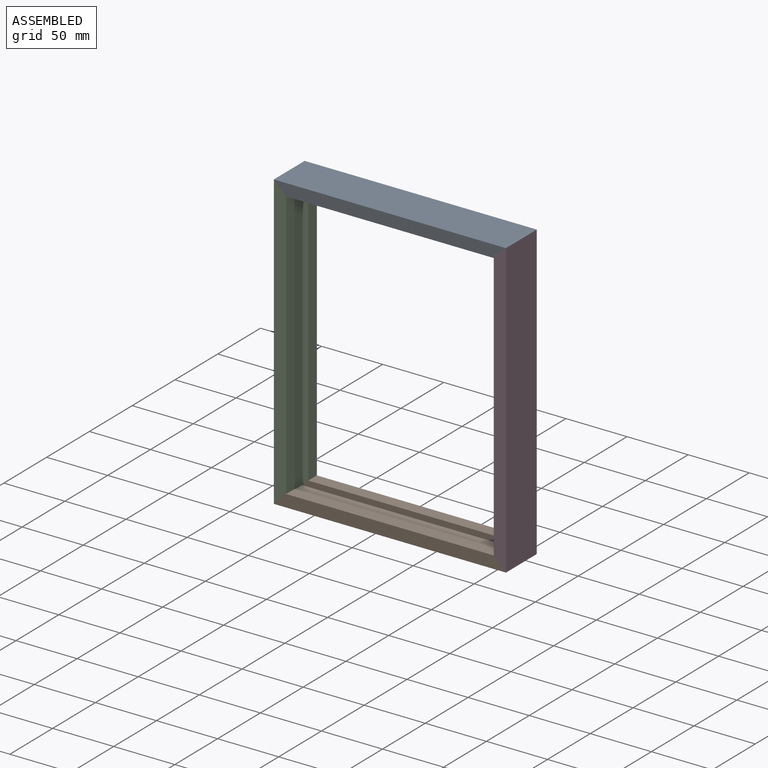
[diagram: assembled view]
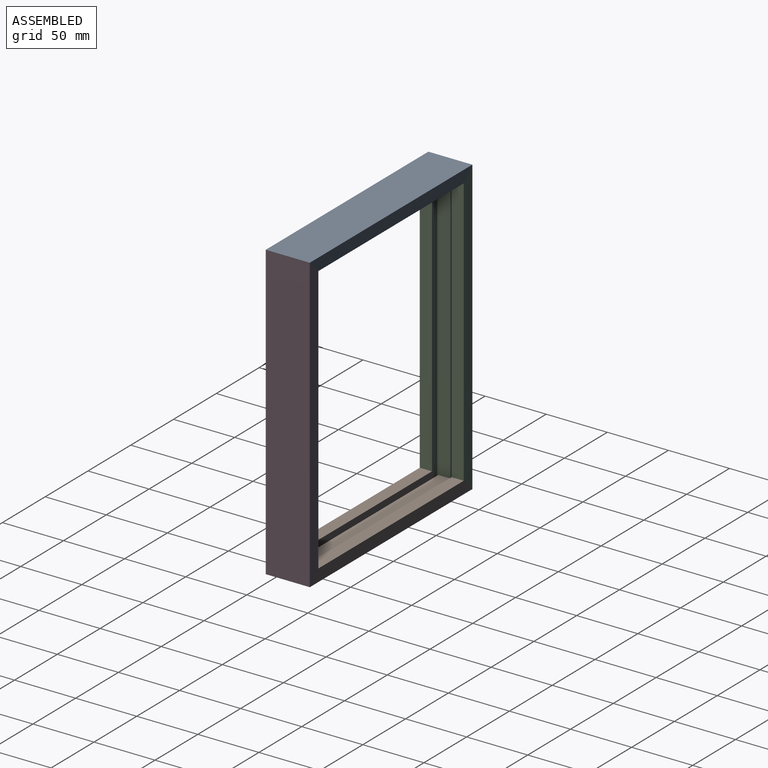
[diagram: assembled view, second angle]
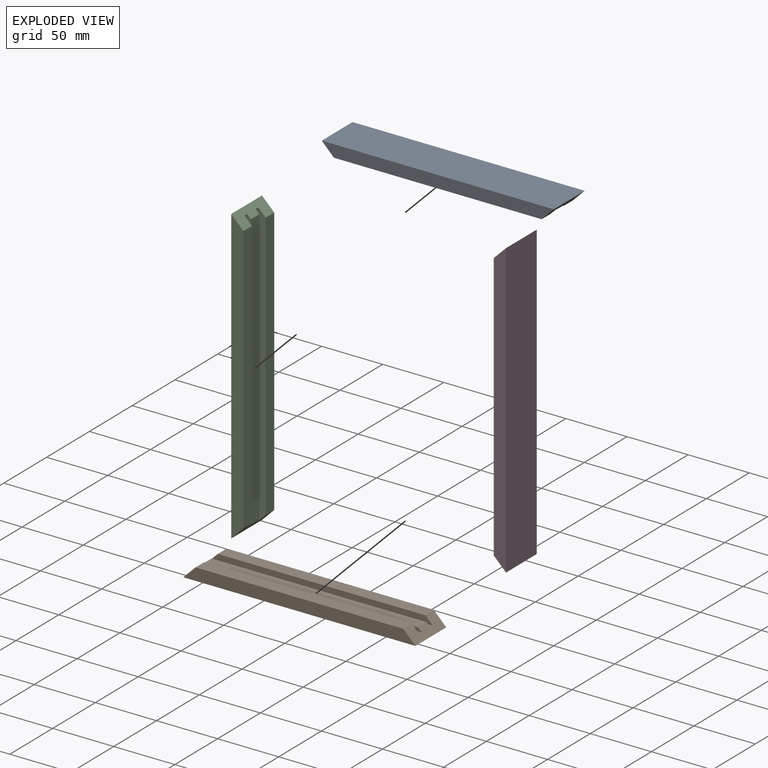
[diagram: exploded view]
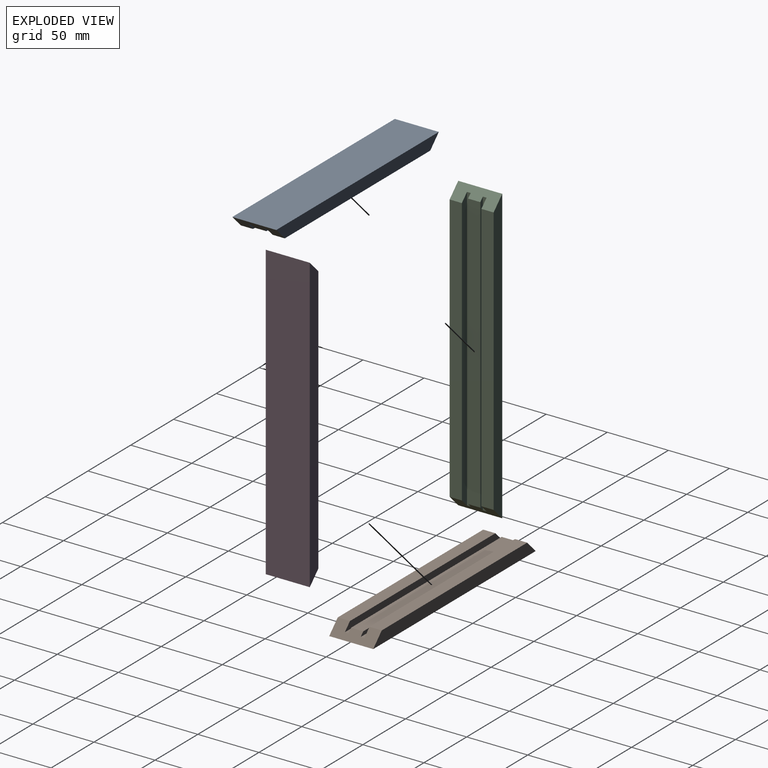
[diagram: exploded view, second angle]
ASSEMBLY  parts=4 mates=3
PART A: 14 faces, bbox 36x10x190 mm
  f0: plane 170x10mm, normal (0,-1,0), area 1700mm2, adj f2,f11,f12,f13
  f1: plane 170x10mm, normal (0,-1,0), area 1700mm2, adj f8,f9,f12,f13
  f2: plane 182x6mm, normal (1,0,0), area 1056mm2, adj f0,f3,f12,f13
  f3: plane 182x3mm, normal (0,-1,0), area 546mm2, adj f2,f4,f12,f13
  f4: plane 182x3mm, normal (-1,0,0), area 537mm2, adj f3,f5,f12,f13
  f5: plane 176x10mm, normal (0,-1,0), area 1760mm2, adj f4,f6,f12,f13
  f6: plane 182x3mm, normal (1,0,0), area 537mm2, adj f5,f7,f12,f13
  f7: plane 182x3mm, normal (0,-1,0), area 546mm2, adj f6,f8,f12,f13
  f8: plane 182x6mm, normal (-1,0,0), area 1056mm2, adj f1,f7,f12,f13
  f9: plane 190x10mm, normal (1,0,0), area 1800mm2, adj f1,f10,f12,f13
  f10: plane 190x36mm, normal (0,1,0), area 6840mm2, adj f9,f11,f12,f13
  f11: plane 190x10mm, normal (-1,0,0), area 1800mm2, adj f0,f10,f12,f13
  f12: plane 36x10mm, normal (0,-0.71,0.71), area 415.8mm2, adj f0,f1,f2,f3,f4,f5,f6,f7
  f13: plane 36x10mm, normal (0,-0.71,-0.71), area 415.8mm2, adj f0,f1,f2,f3,f4,f5,f6,f7
PART B: same geometry as A
PART C: 14 faces, bbox 36x10x240 mm
  f0: plane 220x10mm, normal (0,-1,0), area 2200mm2, adj f2,f11,f12,f13
  f1: plane 220x10mm, normal (0,-1,0), area 2200mm2, adj f8,f9,f12,f13
  f2: plane 232x6mm, normal (1,0,0), area 1356mm2, adj f0,f3,f12,f13
  f3: plane 232x3mm, normal (0,-1,0), area 696mm2, adj f2,f4,f12,f13
  f4: plane 232x3mm, normal (-1,0,0), area 687mm2, adj f3,f5,f12,f13
  f5: plane 226x10mm, normal (0,-1,0), area 2260mm2, adj f4,f6,f12,f13
  f6: plane 232x3mm, normal (1,0,0), area 687mm2, adj f5,f7,f12,f13
  f7: plane 232x3mm, normal (0,-1,0), area 696mm2, adj f6,f8,f12,f13
  f8: plane 232x6mm, normal (-1,0,0), area 1356mm2, adj f1,f7,f12,f13
  f9: plane 240x10mm, normal (1,0,0), area 2300mm2, adj f1,f10,f12,f13
  f10: plane 240x36mm, normal (0,1,0), area 8640mm2, adj f9,f11,f12,f13
  f11: plane 240x10mm, normal (-1,0,0), area 2300mm2, adj f0,f10,f12,f13
  f12: plane 36x10mm, normal (0,-0.71,0.71), area 415.8mm2, adj f0,f1,f2,f3,f4,f5,f6,f7
  f13: plane 36x10mm, normal (0,-0.71,-0.71), area 415.8mm2, adj f0,f1,f2,f3,f4,f5,f6,f7
PART D: same geometry as C
PLACE A rot(axis=(0.58,-0.58,-0.58),120deg) t=(54.08,116.98,287.82)mm
PLACE B rot(axis=(-0.58,0.58,-0.58),120deg) t=(-135.92,116.98,82.53)mm
PLACE C rot(axis=(0,0,1),90deg) t=(-118.56,96.02,65.18)mm
PLACE D rot(axis=(0,0,-1),90deg) t=(36.73,116.98,65.18)mm
MATE planar B.f12 <-> D.f13  axis (0.71,0,0.71) through (49.69,106.5,69.57)mm
MATE planar C.f12 <-> A.f12  axis (0.71,0,0.71) through (-131.52,106.5,300.78)mm
MATE planar A.f13 <-> D.f12  axis (0.71,0,-0.71) through (49.69,106.5,300.78)mm
